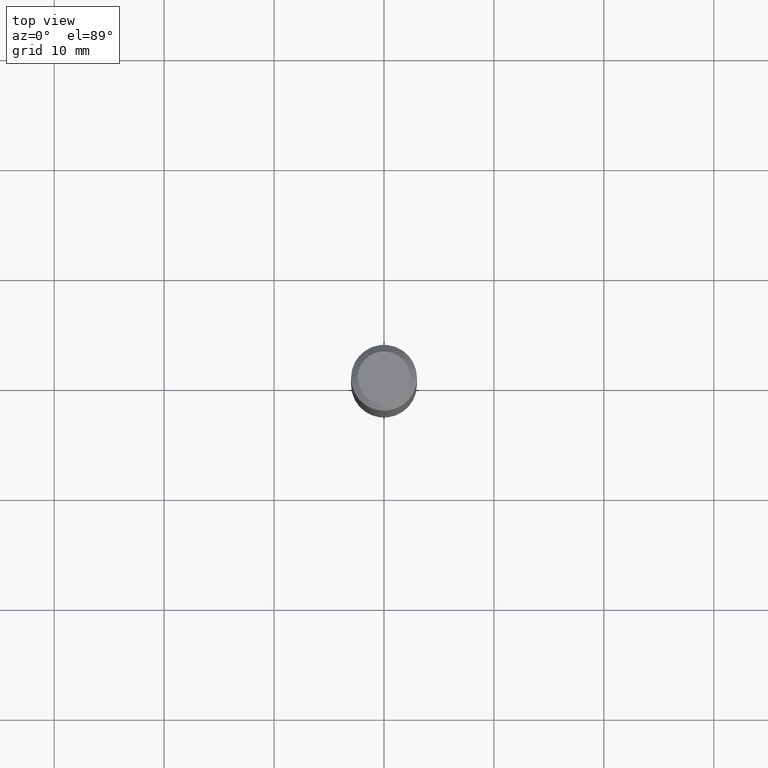
[diagram: clean part render]
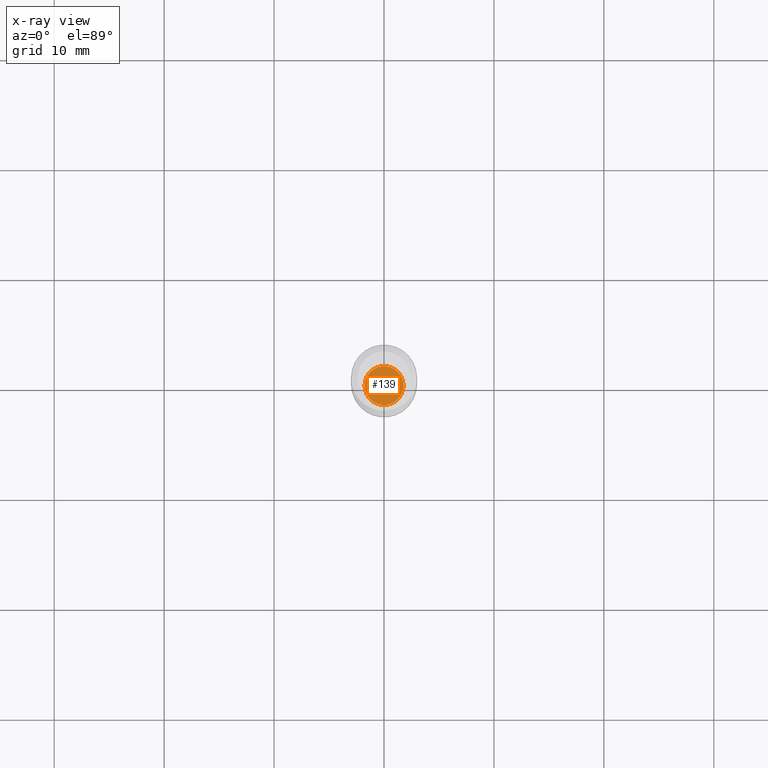
[diagram: x-ray — body ghosted, one internal face saturated and labeled with its STEP entity id]
A machine part, top view, then the same camera in x-ray: the body is ghosted and one INTERNAL B-rep face — a face not visible from any outside direction — is saturated and labeled: STEP entity #139.
In plain terms, the highlighted planar face has unit normal (-0, 0, 1).
Its self-contained STEP definition (entity closure, byte-faithful):
#15 = VERTEX_POINT ( 'NONE', #311 ) ;
#109 = EDGE_CURVE ( 'NONE', #15, #148, #204, .T. ) ;
#139 = ADVANCED_FACE ( 'NONE', ( #176 ), #325, .F. ) ;
#143 = AXIS2_PLACEMENT_3D ( 'NONE', #478, #250, #322 ) ;
#148 = VERTEX_POINT ( 'NONE', #154 ) ;
#154 = CARTESIAN_POINT ( 'NONE',  ( -0.06980000000000000093, -5.215550302416030944E-15, -1.636600000000000055 ) ) ;
#164 = DIRECTION ( 'NONE',  ( -2.438088387897960049E-29, 3.491481338843145188E-15, 1.000000000000000000 ) ) ;
#176 = FACE_OUTER_BOUND ( 'NONE', #305, .T. ) ;
#204 = CIRCLE ( 'NONE', #143, 0.06980000000000000093 ) ;
#250 = DIRECTION ( 'NONE',  ( -2.445468806185136597E-29, 3.491481338843145583E-15, 1.000000000000000000 ) ) ;
#280 = AXIS2_PLACEMENT_3D ( 'NONE', #367, #164, #432 ) ;
#293 = EDGE_CURVE ( 'NONE', #148, #15, #418, .T. ) ;
#305 = EDGE_LOOP ( 'NONE', ( #467, #423 ) ) ;
#311 = CARTESIAN_POINT ( 'NONE',  ( 0.06980000000000000093, -6.201569154053193825E-15, -1.636600000000000055 ) ) ;
#322 = DIRECTION ( 'NONE',  ( 1.000000000000000000, -6.982962677686271444E-15, 0.000000000000000000 ) ) ;
#325 = PLANE ( 'NONE',  #280 ) ;
#332 = AXIS2_PLACEMENT_3D ( 'NONE', #397, #399, #362 ) ;
#362 = DIRECTION ( 'NONE',  ( 1.000000000000000000, -6.982962677686271444E-15, 0.000000000000000000 ) ) ;
#367 = CARTESIAN_POINT ( 'NONE',  ( 4.002254248202594022E-29, -5.714158359150691884E-15, -1.636600000000000055 ) ) ;
#397 = CARTESIAN_POINT ( 'NONE',  ( 4.002254248202594022E-29, -5.714158359150691884E-15, -1.636600000000000055 ) ) ;
#399 = DIRECTION ( 'NONE',  ( -2.445468806185136597E-29, 3.491481338843145583E-15, 1.000000000000000000 ) ) ;
#418 = CIRCLE ( 'NONE', #332, 0.06980000000000000093 ) ;
#423 = ORIENTED_EDGE ( 'NONE', *, *, #293, .F. ) ;
#432 = DIRECTION ( 'NONE',  ( 1.000000000000000000, -6.982962677686265922E-15, 4.876176775795935793E-29 ) ) ;
#467 = ORIENTED_EDGE ( 'NONE', *, *, #109, .F. ) ;
#478 = CARTESIAN_POINT ( 'NONE',  ( 4.002254248202594022E-29, -5.714158359150691884E-15, -1.636600000000000055 ) ) ;